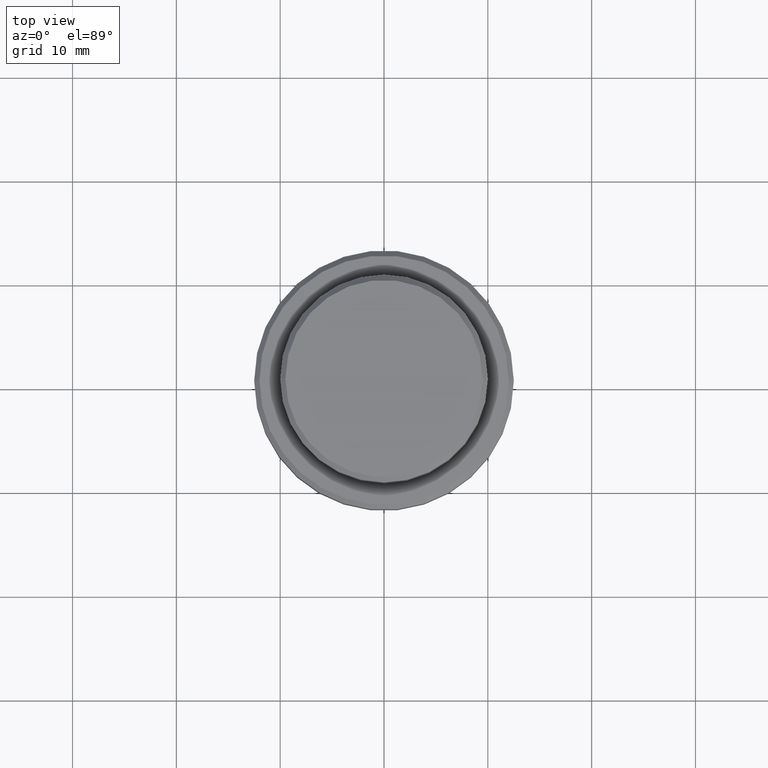
[diagram: clean part render]
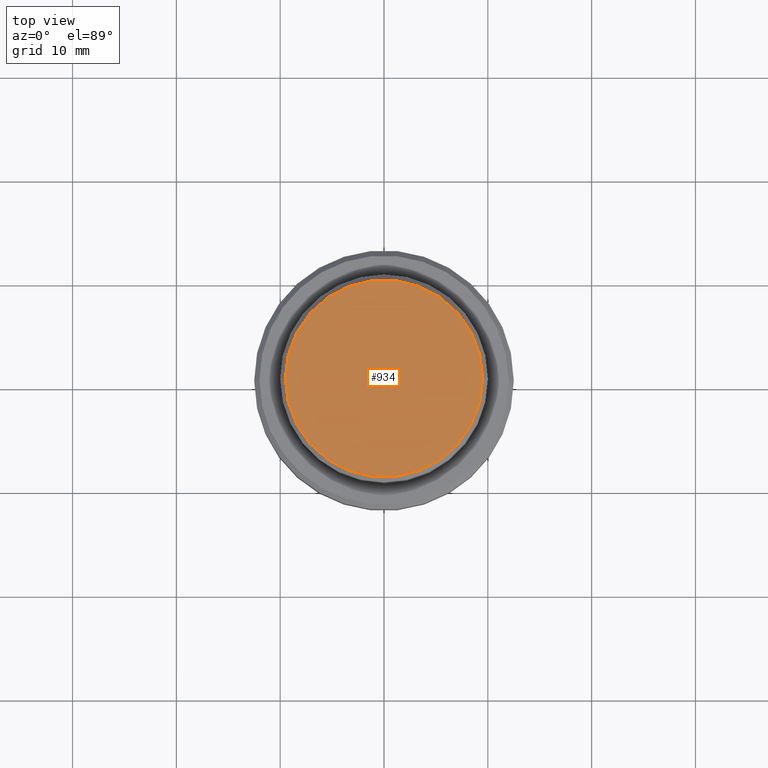
[diagram: same view with one face highlighted and labeled with its STEP entity id]
A machine part, top view. The second image highlights one B-rep face of the part: STEP entity #934.
In plain terms, the highlighted planar face has unit normal (0, -0, 1).
Its self-contained STEP definition (entity closure, byte-faithful):
#19 = CARTESIAN_POINT ( 'NONE',  ( 9.499999999999987566, 1.194030629168668681E-15, 0.000000000000000000 ) ) ;
#35 = DIRECTION ( 'NONE',  ( 1.000000000000000000, 0.000000000000000000, 0.000000000000000000 ) ) ;
#90 = CARTESIAN_POINT ( 'NONE',  ( 0.000000000000000000, 0.000000000000000000, 0.000000000000000000 ) ) ;
#360 = AXIS2_PLACEMENT_3D ( 'NONE', #90, #415, #1097 ) ;
#415 = DIRECTION ( 'NONE',  ( 0.000000000000000000, -0.000000000000000000, 1.000000000000000000 ) ) ;
#429 = AXIS2_PLACEMENT_3D ( 'NONE', #1263, #695, #1275 ) ;
#460 = VERTEX_POINT ( 'NONE', #19 ) ;
#516 = PLANE ( 'NONE',  #360 ) ;
#554 = VERTEX_POINT ( 'NONE', #964 ) ;
#695 = DIRECTION ( 'NONE',  ( -0.000000000000000000, -0.000000000000000000, 1.000000000000000000 ) ) ;
#777 = EDGE_CURVE ( 'NONE', #460, #554, #1152, .T. ) ;
#934 = ADVANCED_FACE ( 'NONE', ( #1074 ), #516, .T. ) ;
#964 = CARTESIAN_POINT ( 'NONE',  ( -9.499999999999987566, 0.000000000000000000, 0.000000000000000000 ) ) ;
#986 = ORIENTED_EDGE ( 'NONE', *, *, #1098, .T. ) ;
#1017 = DIRECTION ( 'NONE',  ( -0.000000000000000000, -0.000000000000000000, 1.000000000000000000 ) ) ;
#1065 = CIRCLE ( 'NONE', #1269, 9.499999999999987566 ) ;
#1074 = FACE_OUTER_BOUND ( 'NONE', #1287, .T. ) ;
#1097 = DIRECTION ( 'NONE',  ( 1.000000000000000000, 0.000000000000000000, 0.000000000000000000 ) ) ;
#1098 = EDGE_CURVE ( 'NONE', #554, #460, #1065, .T. ) ;
#1152 = CIRCLE ( 'NONE', #429, 9.499999999999987566 ) ;
#1219 = CARTESIAN_POINT ( 'NONE',  ( 0.000000000000000000, 0.000000000000000000, 0.000000000000000000 ) ) ;
#1263 = CARTESIAN_POINT ( 'NONE',  ( 0.000000000000000000, 0.000000000000000000, 0.000000000000000000 ) ) ;
#1269 = AXIS2_PLACEMENT_3D ( 'NONE', #1219, #1017, #35 ) ;
#1275 = DIRECTION ( 'NONE',  ( 1.000000000000000000, 0.000000000000000000, 0.000000000000000000 ) ) ;
#1287 = EDGE_LOOP ( 'NONE', ( #986, #1378 ) ) ;
#1378 = ORIENTED_EDGE ( 'NONE', *, *, #777, .T. ) ;